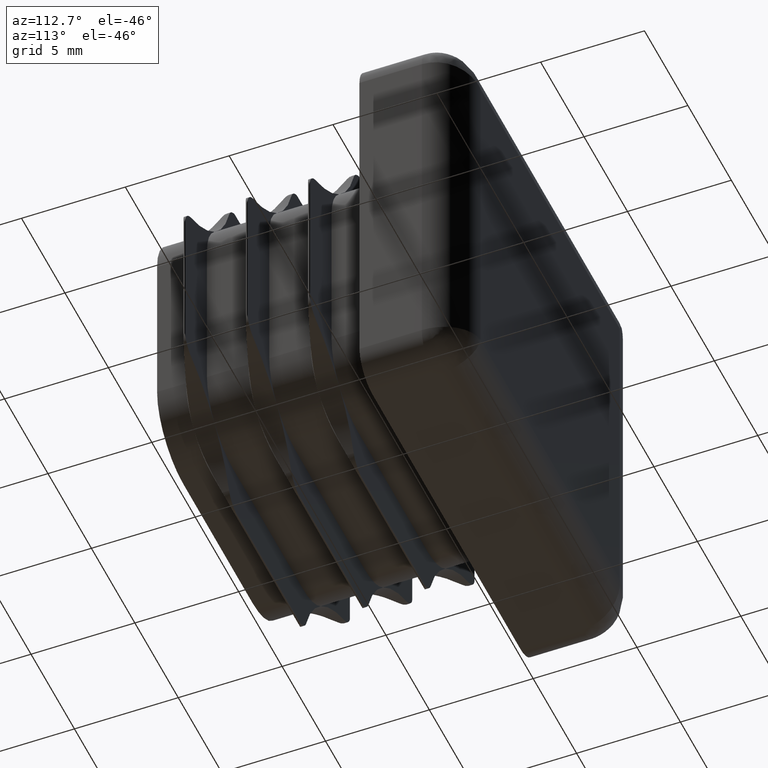
[diagram: clean part render]
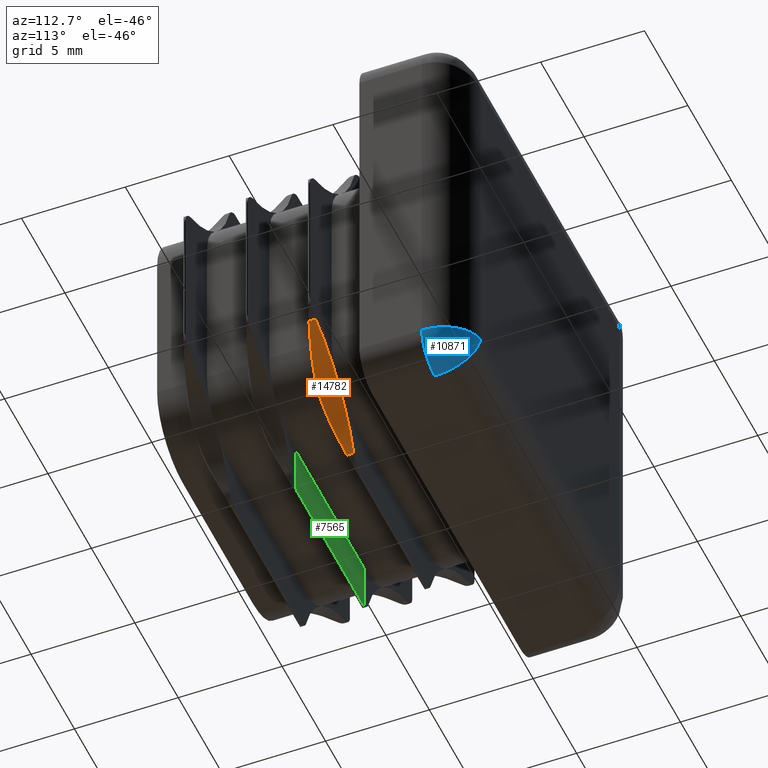
[diagram: same view with three faces highlighted in distinct colors, each labeled with its STEP entity id]
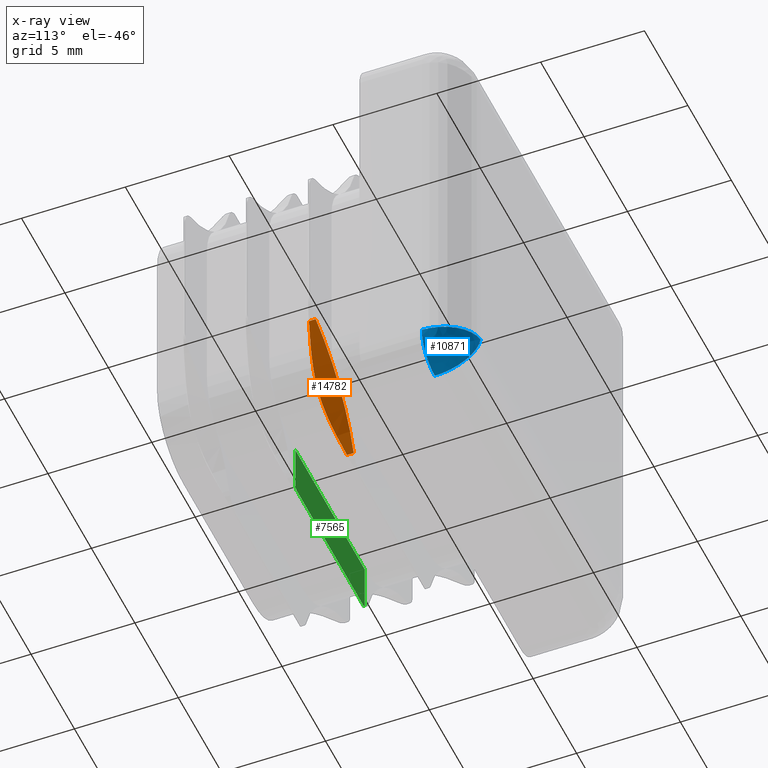
[diagram: x-ray of the same camera — body ghosted, the three highlighted faces saturated]
A machine part, auxiliary view with three faces highlighted in distinct colors.
The next image is the same camera in x-ray (body ghosted, the three faces saturated) — at least one of them is partly hidden behind the body in this view.
Their STEP definitions:

[orange] entity #14782 — the highlighted cylindrical surface (partial cylindrical patch) has radius 7 mm, axis along (-0, -1, -0).
#117 = DIRECTION ( 'NONE',  ( 0.000000000000000000, 0.000000000000000000, -1.000000000000000000 ) ) ;
#992 = EDGE_CURVE ( 'NONE', #14035, #10163, #3571, .T. ) ;
#1171 = CARTESIAN_POINT ( 'NONE',  ( 5.745531885353549306, -3.580002896200547013, -6.519760111651108581 ) ) ;
#1306 = CARTESIAN_POINT ( 'NONE',  ( 6.121320343559603749, -3.599999999999996980, -6.121320343559637500 ) ) ;
#1347 = DIRECTION ( 'NONE',  ( -0.000000000000000000, -1.000000000000000000, -0.000000000000000000 ) ) ;
#1427 = CARTESIAN_POINT ( 'NONE',  ( 7.169459828230924536, -3.452797768405219347, -5.253168636700123351 ) ) ;
#1678 = LINE ( 'NONE', #2845, #2201 ) ;
#1779 = CARTESIAN_POINT ( 'NONE',  ( 6.121320343559603749, -3.599999999999996980, -6.121320343559637500 ) ) ;
#1829 = CARTESIAN_POINT ( 'NONE',  ( 11.07106781186539735, 8.491681050490834437, -11.07106781186550926 ) ) ;
#2096 = DIRECTION ( 'NONE',  ( -0.000000000000000000, -1.000000000000000000, -0.000000000000000000 ) ) ;
#2201 = VECTOR ( 'NONE', #1347, 1000.000000000000000 ) ;
#2220 = AXIS2_PLACEMENT_3D ( 'NONE', #8789, #2096, #11836 ) ;
#2465 = EDGE_LOOP ( 'NONE', ( #17343, #15799, #13583, #7541, #10443, #9851 ) ) ;
#2735 = CARTESIAN_POINT ( 'NONE',  ( 5.404659111604990684, -3.505177043886538613, -6.951899555018928645 ) ) ;
#2845 = CARTESIAN_POINT ( 'NONE',  ( 8.821383476483250163, 8.491681050490834437, -4.442423878817345795 ) ) ;
#3113 = LINE ( 'NONE', #16249, #14548 ) ;
#3571 = B_SPLINE_CURVE_WITH_KNOTS ( 'NONE', 3,
 ( #6939, #11837, #5388, #16756, #2735, #1171, #5875, #1306 ),
 .UNSPECIFIED., .F., .F.,
 ( 4, 2, 2, 4 ),
 ( 2.193296499207361327E-07, 0.001634971459249367305, 0.002452347524049092002, 0.003269723588848817350 ),
 .UNSPECIFIED. ) ;
#3769 = CARTESIAN_POINT ( 'NONE',  ( 4.442423878817267635, -2.925917737636757998, -8.821383476483271480 ) ) ;
#4046 = VERTEX_POINT ( 'NONE', #18072 ) ;
#5193 = CARTESIAN_POINT ( 'NONE',  ( 11.07106781186539735, -2.600000000000000089, -11.07106781186550926 ) ) ;
#5388 = CARTESIAN_POINT ( 'NONE',  ( 4.832470983947253274, -3.263234164846329222, -7.852042368346087819 ) ) ;
#5875 = CARTESIAN_POINT ( 'NONE',  ( 5.927656959038019480, -3.599999999999996980, -6.314983728081218217 ) ) ;
#6010 = FACE_OUTER_BOUND ( 'NONE', #2465, .T. ) ;
#6344 = CARTESIAN_POINT ( 'NONE',  ( 6.121320343559603749, -3.599999999999996980, -6.121320343559637500 ) ) ;
#6939 = CARTESIAN_POINT ( 'NONE',  ( 4.442423878817267635, -2.925917737636757998, -8.821383476483271480 ) ) ;
#7541 = ORIENTED_EDGE ( 'NONE', *, *, #14510, .T. ) ;
#7915 = CARTESIAN_POINT ( 'NONE',  ( 6.519408464712602935, -3.579993506682874749, -5.745905243733256285 ) ) ;
#8426 = DIRECTION ( 'NONE',  ( -0.000000000000000000, -1.000000000000000000, -0.000000000000000000 ) ) ;
#8789 = CARTESIAN_POINT ( 'NONE',  ( 11.07106781186539735, -2.600000000000000089, -11.07106781186550926 ) ) ;
#9161 = VERTEX_POINT ( 'NONE', #15903 ) ;
#9640 = CARTESIAN_POINT ( 'NONE',  ( 8.821383476483250163, -2.600000000000000089, -4.442423878817345795 ) ) ;
#9740 = B_SPLINE_CURVE_WITH_KNOTS ( 'NONE', 3,
 ( #6344, #16094, #7915, #17719, #1427, #19486, #17791, #19283 ),
 .UNSPECIFIED., .F., .F.,
 ( 4, 2, 2, 4 ),
 ( 0.003269723588848817350, 0.004083633120292207326, 0.004897542651735597302, 0.006525361714622372050 ),
 .UNSPECIFIED. ) ;
#9851 = ORIENTED_EDGE ( 'NONE', *, *, #992, .F. ) ;
#10163 = VERTEX_POINT ( 'NONE', #1779 ) ;
#10443 = ORIENTED_EDGE ( 'NONE', *, *, #13036, .F. ) ;
#11711 = VERTEX_POINT ( 'NONE', #15483 ) ;
#11836 = DIRECTION ( 'NONE',  ( 0.000000000000000000, 0.000000000000000000, -1.000000000000000000 ) ) ;
#11837 = CARTESIAN_POINT ( 'NONE',  ( 4.611062613353775319, -3.101389552967593222, -8.324493265273966713 ) ) ;
#12077 = CIRCLE ( 'NONE', #14687, 6.999999999999999112 ) ;
#13036 = EDGE_CURVE ( 'NONE', #10163, #11711, #9740, .T. ) ;
#13583 = ORIENTED_EDGE ( 'NONE', *, *, #16344, .F. ) ;
#13601 = CYLINDRICAL_SURFACE ( 'NONE', #18384, 6.999999999999999112 ) ;
#14035 = VERTEX_POINT ( 'NONE', #3769 ) ;
#14510 = EDGE_CURVE ( 'NONE', #18895, #11711, #1678, .T. ) ;
#14548 = VECTOR ( 'NONE', #8426, 1000.000000000000000 ) ;
#14687 = AXIS2_PLACEMENT_3D ( 'NONE', #5193, #16558, #117 ) ;
#14782 = ADVANCED_FACE ( 'NONE', ( #6010 ), #13601, .F. ) ;
#15483 = CARTESIAN_POINT ( 'NONE',  ( 8.821383476483250163, -2.925917737636763327, -4.442423878817345795 ) ) ;
#15799 = ORIENTED_EDGE ( 'NONE', *, *, #20694, .F. ) ;
#15903 = CARTESIAN_POINT ( 'NONE',  ( 6.121320343559603749, -2.600000000000000089, -6.121320343559636612 ) ) ;
#16094 = CARTESIAN_POINT ( 'NONE',  ( 6.314162391842883082, -3.599999999999996536, -5.928478295276363497 ) ) ;
#16249 = CARTESIAN_POINT ( 'NONE',  ( 4.442423878817267635, 8.491681050490834437, -8.821383476483271480 ) ) ;
#16344 = EDGE_CURVE ( 'NONE', #18895, #9161, #12077, .T. ) ;
#16488 = DIRECTION ( 'NONE',  ( -0.000000000000000000, -1.000000000000000000, -0.000000000000000000 ) ) ;
#16558 = DIRECTION ( 'NONE',  ( -0.000000000000000000, -1.000000000000000000, -0.000000000000000000 ) ) ;
#16756 = CARTESIAN_POINT ( 'NONE',  ( 5.250404806876889374, -3.451760730813376643, -7.173576826732620759 ) ) ;
#17343 = ORIENTED_EDGE ( 'NONE', *, *, #18081, .F. ) ;
#17719 = CARTESIAN_POINT ( 'NONE',  ( 6.949236706462075475, -3.505707908590916411, -5.406664266205122971 ) ) ;
#17791 = CARTESIAN_POINT ( 'NONE',  ( 8.325792497765508671, -3.100930741989458728, -4.610621669019863589 ) ) ;
#18072 = CARTESIAN_POINT ( 'NONE',  ( 4.442423878817267635, -2.600000000000000089, -8.821383476483271480 ) ) ;
#18081 = EDGE_CURVE ( 'NONE', #4046, #14035, #3113, .T. ) ;
#18384 = AXIS2_PLACEMENT_3D ( 'NONE', #1829, #16488, #20240 ) ;
#18895 = VERTEX_POINT ( 'NONE', #9640 ) ;
#19283 = CARTESIAN_POINT ( 'NONE',  ( 8.821383476483250163, -2.925917737636763327, -4.442423878817345795 ) ) ;
#19486 = CARTESIAN_POINT ( 'NONE',  ( 7.847343410461620650, -3.264750765852229897, -4.834916461457533288 ) ) ;
#20240 = DIRECTION ( 'NONE',  ( 0.000000000000000000, 0.000000000000000000, -1.000000000000000000 ) ) ;
#20361 = CIRCLE ( 'NONE', #2220, 6.999999999999999112 ) ;
#20694 = EDGE_CURVE ( 'NONE', #9161, #4046, #20361, .T. ) ;

[blue] entity #10871 — the highlighted face is a freeform B-spline surface patch.
#311 =( BOUNDED_CURVE ( )  B_SPLINE_CURVE ( 3, ( #10026, #9806, #1770, #1915 ),
 .UNSPECIFIED., .F., .F. ) 
 B_SPLINE_CURVE_WITH_KNOTS ( ( 4, 4 ),
 ( 0.000000000000000000, 1.570796326794897446 ),
 .UNSPECIFIED. ) 
 CURVE ( )  GEOMETRIC_REPRESENTATION_ITEM ( )  RATIONAL_B_SPLINE_CURVE ( ( 1.000000000000000000, 0.8047378541243648264, 0.8047378541243648264, 1.000000000000000000 ) ) 
 REPRESENTATION_ITEM ( '' )  );
#449 = CARTESIAN_POINT ( 'NONE',  ( 8.500000000000017764, 3.000000000000000000, -10.00000000000000000 ) ) ;
#456 = CIRCLE ( 'NONE', #19808, 1.499999999999999556 ) ;
#796 = CARTESIAN_POINT ( 'NONE',  ( 9.475127912448758849, 4.456070975774515830, -9.475127912448808587 ) ) ;
#873 = CARTESIAN_POINT ( 'NONE',  ( 8.499999999934479078, 3.130901116873727297, -10.00000000000000000 ) ) ;
#1022 = CARTESIAN_POINT ( 'NONE',  ( 9.267225952656692911, 4.642399879337945734, -9.267225952656614751 ) ) ;
#1318 = CARTESIAN_POINT ( 'NONE',  ( 8.500000000000014211, 3.000000000000000000, -10.00000000000000000 ) ) ;
#1770 = CARTESIAN_POINT ( 'NONE',  ( 9.171572875253826140, 5.000000000000001776, -8.292893218813452094 ) ) ;
#1915 = CARTESIAN_POINT ( 'NONE',  ( 8.000000000000015987, 5.000000000000000000, -8.000000000000001776 ) ) ;
#2440 = CARTESIAN_POINT ( 'NONE',  ( 8.868498082558987861, 4.871239223148100095, -8.868498082558970097 ) ) ;
#2509 = CARTESIAN_POINT ( 'NONE',  ( 8.496776951960159252, 3.261796233497789466, -9.987107807840512663 ) ) ;
#2655 = CARTESIAN_POINT ( 'NONE',  ( 9.967381048192319071, 3.454858333943229720, -9.967381048192274662 ) ) ;
#2722 = CARTESIAN_POINT ( 'NONE',  ( 8.065461631044817281, 5.000000000000000000, -8.261846524179192741 ) ) ;
#3145 = CARTESIAN_POINT ( 'NONE',  ( 8.500000000000014211, 3.000000000000000000, -10.00000000000000000 ) ) ;
#4107 = CARTESIAN_POINT ( 'NONE',  ( 10.00000000000001776, 3.000000000000000000, -8.500000000000000000 ) ) ;
#4318 = CARTESIAN_POINT ( 'NONE',  ( 9.007237873748264789, 4.747572812742424375, -8.251809468437061312 ) ) ;
#4388 = CARTESIAN_POINT ( 'NONE',  ( 8.261846524179208728, 4.999999999999999112, -8.065461631044797741 ) ) ;
#4777 =( BOUNDED_SURFACE ( )  B_SPLINE_SURFACE ( 3, 2, ( 
 ( #449, #7436, #4107 ),
 ( #873, #10769, #6008 ),
 ( #2509, #2655, #12252 ),
 ( #20565, #9202, #8920 ),
 ( #17103, #20286, #18727 ),
 ( #9132, #18796, #10558 ),
 ( #12467, #796, #17382 ),
 ( #12183, #1022, #20499 ),
 ( #13932, #5937, #17307 ),
 ( #8999, #2440, #13999 ),
 ( #15607, #12399, #4318 ),
 ( #15461, #9065, #13857 ),
 ( #2722, #10838, #4388 ),
 ( #18866, #5732, #7575 ) ),
 .UNSPECIFIED., .F., .F., .F. ) 
 B_SPLINE_SURFACE_WITH_KNOTS ( ( 4, 2, 2, 2, 2, 2, 4 ),
 ( 3, 3 ),
 ( 6.283185307179586232, 6.479534848028948524, 6.675884388878310816, 6.872233929727672219, 7.068583470577034511, 7.461282552275758206, 7.853981633974482790 ),
 ( 0.000000000000000000, 1.000000000000000000 ),
 .UNSPECIFIED. ) 
 GEOMETRIC_REPRESENTATION_ITEM ( )  RATIONAL_B_SPLINE_SURFACE ( (
 ( 1.000000000000000000, 0.7071067811865475727, 1.000000000000000000),
 ( 1.000000000000000000, 0.7070717008705392770, 1.000000000000000000),
 ( 1.000000000000000000, 0.7117460391535136432, 1.000000000000000000),
 ( 1.000000000000000000, 0.7291288573898028202, 1.000000000000000000),
 ( 1.000000000000000000, 0.7418334672881716774, 1.000000000000000000),
 ( 1.000000000000000000, 0.7723967724090317066, 1.000000000000000000),
 ( 1.000000000000000000, 0.7902180514827583657, 1.000000000000000000),
 ( 1.000000000000000000, 0.8275942267605824743, 1.000000000000000000),
 ( 1.000000000000000000, 0.8471316911967918806, 1.000000000000000000),
 ( 1.000000000000000000, 0.9038128289597302523, 1.000000000000000000),
 ( 1.000000000000000000, 0.9386556746367710202, 1.000000000000000000),
 ( 1.000000000000000000, 0.9867291651255415408, 1.000000000000000000),
 ( 1.000000000000000000, 1.000158598892028960, 1.000000000000000000),
 ( 1.000000000000000000, 1.000000000000000000, 1.000000000000000000) ) ) 
 REPRESENTATION_ITEM ( '' )  SURFACE ( )  );
#5297 = EDGE_CURVE ( 'NONE', #13898, #14724, #311, .T. ) ;
#5587 = FACE_OUTER_BOUND ( 'NONE', #20187, .T. ) ;
#5732 = CARTESIAN_POINT ( 'NONE',  ( 8.000000000000019540, 5.000000000000000000, -8.000000000000000000 ) ) ;
#5937 = CARTESIAN_POINT ( 'NONE',  ( 9.163169948761591854, 4.712569180173970196, -9.163169948761574091 ) ) ;
#6008 = CARTESIAN_POINT ( 'NONE',  ( 10.00000000000001776, 3.130901116873741064, -8.499999999934573225 ) ) ;
#6611 = ORIENTED_EDGE ( 'NONE', *, *, #9123, .T. ) ;
#7436 = CARTESIAN_POINT ( 'NONE',  ( 10.00000000000001776, 2.999999999999999556, -10.00000000000000178 ) ) ;
#7575 = CARTESIAN_POINT ( 'NONE',  ( 8.000000000000021316, 5.000000000000000000, -8.000000000000000000 ) ) ;
#7734 = CARTESIAN_POINT ( 'NONE',  ( 8.500000000000017764, 4.171572875253810153, -10.00000000000000000 ) ) ;
#7863 = CARTESIAN_POINT ( 'NONE',  ( 8.292893218813469858, 5.000000000000000000, -9.171572875253810153 ) ) ;
#7887 =( BOUNDED_CURVE ( )  B_SPLINE_CURVE ( 3, ( #1318, #7734, #7863, #9353 ),
 .UNSPECIFIED., .F., .T. ) 
 B_SPLINE_CURVE_WITH_KNOTS ( ( 4, 4 ),
 ( 0.000000000000000000, 1.570796326794896558 ),
 .UNSPECIFIED. ) 
 CURVE ( )  GEOMETRIC_REPRESENTATION_ITEM ( )  RATIONAL_B_SPLINE_CURVE ( ( 1.000000000000000000, 0.8047378541243649375, 0.8047378541243649375, 1.000000000000000000 ) ) 
 REPRESENTATION_ITEM ( '' )  );
#8072 = ORIENTED_EDGE ( 'NONE', *, *, #11429, .F. ) ;
#8441 = ORIENTED_EDGE ( 'NONE', *, *, #5297, .F. ) ;
#8920 = CARTESIAN_POINT ( 'NONE',  ( 9.936033313772423270, 3.518565054566740180, -8.484008328443115587 ) ) ;
#8999 = CARTESIAN_POINT ( 'NONE',  ( 8.307273380556349451, 4.599333602520793818, -9.229093522225397805 ) ) ;
#9065 = CARTESIAN_POINT ( 'NONE',  ( 8.331464037326457017, 4.987936888157777027, -8.331464037326437477 ) ) ;
#9123 = EDGE_CURVE ( 'NONE', #10033, #14724, #7887, .T. ) ;
#9132 = CARTESIAN_POINT ( 'NONE',  ( 8.449416487498760731, 3.886302342411108945, -9.797665949995064238 ) ) ;
#9202 = CARTESIAN_POINT ( 'NONE',  ( 9.849303782782367733, 3.862933231318100180, -9.849303782782374839 ) ) ;
#9353 = CARTESIAN_POINT ( 'NONE',  ( 8.000000000000015987, 5.000000000000000000, -8.000000000000001776 ) ) ;
#9372 = CARTESIAN_POINT ( 'NONE',  ( 8.500000000000015987, 3.000000000000000000, -8.500000000000000000 ) ) ;
#9806 = CARTESIAN_POINT ( 'NONE',  ( 10.00000000000001421, 4.171572875253810153, -8.500000000000000000 ) ) ;
#10026 = CARTESIAN_POINT ( 'NONE',  ( 10.00000000000001599, 3.000000000000000000, -8.500000000000000000 ) ) ;
#10033 = VERTEX_POINT ( 'NONE', #3145 ) ;
#10558 = CARTESIAN_POINT ( 'NONE',  ( 9.797665949995067791, 3.886302342411143584, -8.449416487498773165 ) ) ;
#10769 = CARTESIAN_POINT ( 'NONE',  ( 9.999999991084669304, 3.229445146648374898, -9.999999991084878914 ) ) ;
#10838 = CARTESIAN_POINT ( 'NONE',  ( 8.163602867483380265, 4.999999997674066776, -8.163602867483039205 ) ) ;
#10871 = ADVANCED_FACE ( 'NONE', ( #5587 ), #4777, .T. ) ;
#11429 = EDGE_CURVE ( 'NONE', #10033, #13898, #456, .T. ) ;
#12183 = CARTESIAN_POINT ( 'NONE',  ( 8.397553822052683969, 4.219979528330787488, -9.590215288210689693 ) ) ;
#12252 = CARTESIAN_POINT ( 'NONE',  ( 9.987107807840533980, 3.261796233497769482, -8.496776951960114843 ) ) ;
#12399 = CARTESIAN_POINT ( 'NONE',  ( 8.679281854046230649, 4.924992851440422648, -8.679281854046212885 ) ) ;
#12467 = CARTESIAN_POINT ( 'NONE',  ( 8.433915790249894684, 4.002301403747621222, -9.735663160999495247 ) ) ;
#13195 = CARTESIAN_POINT ( 'NONE',  ( 8.000000000000015987, 5.000000000000000000, -8.000000000000001776 ) ) ;
#13857 = CARTESIAN_POINT ( 'NONE',  ( 8.523495855712138081, 4.947945317302719026, -8.130873963928030079 ) ) ;
#13898 = VERTEX_POINT ( 'NONE', #17748 ) ;
#13932 = CARTESIAN_POINT ( 'NONE',  ( 8.376693395611763293, 4.321653542299241479, -9.506773582446948367 ) ) ;
#13999 = CARTESIAN_POINT ( 'NONE',  ( 9.229093522225381818, 4.599333602520827569, -8.307273380556331688 ) ) ;
#14257 = DIRECTION ( 'NONE',  ( 0.000000000000000000, -1.000000000000000000, -0.000000000000000000 ) ) ;
#14397 = DIRECTION ( 'NONE',  ( 0.000000000000000000, 0.000000000000000000, -1.000000000000000000 ) ) ;
#14724 = VERTEX_POINT ( 'NONE', #13195 ) ;
#15461 = CARTESIAN_POINT ( 'NONE',  ( 8.130873963928047843, 4.947945317302719914, -8.523495855712116764 ) ) ;
#15607 = CARTESIAN_POINT ( 'NONE',  ( 8.251809468437077300, 4.747572812742426152, -9.007237873748243473 ) ) ;
#17103 = CARTESIAN_POINT ( 'NONE',  ( 8.474463045012562645, 3.644431387049245075, -9.897852180050087156 ) ) ;
#17307 = CARTESIAN_POINT ( 'NONE',  ( 9.506773582446983895, 4.321653542299222828, -8.376693395611745530 ) ) ;
#17382 = CARTESIAN_POINT ( 'NONE',  ( 9.735663160999500576, 4.002301403747635433, -8.433915790249880473 ) ) ;
#17748 = CARTESIAN_POINT ( 'NONE',  ( 10.00000000000001599, 3.000000000000000000, -8.500000000000000000 ) ) ;
#18727 = CARTESIAN_POINT ( 'NONE',  ( 9.897852180050117354, 3.644431387049205995, -8.474463045012514684 ) ) ;
#18796 = CARTESIAN_POINT ( 'NONE',  ( 9.578506115850927927, 4.337851778722862761, -9.578506115850936808 ) ) ;
#18866 = CARTESIAN_POINT ( 'NONE',  ( 8.000000000000017764, 5.000000000000000000, -7.999999999999998224 ) ) ;
#19808 = AXIS2_PLACEMENT_3D ( 'NONE', #9372, #14257, #14397 ) ;
#20187 = EDGE_LOOP ( 'NONE', ( #8072, #6611, #8441 ) ) ;
#20286 = CARTESIAN_POINT ( 'NONE',  ( 9.766763865964938063, 4.041650783308535999, -9.766763865964890101 ) ) ;
#20499 = CARTESIAN_POINT ( 'NONE',  ( 9.590215288210712785, 4.219979528330772389, -8.397553822052667982 ) ) ;
#20565 = CARTESIAN_POINT ( 'NONE',  ( 8.484008328443104929, 3.518565054566721528, -9.936033313772409059 ) ) ;

[green] entity #7565 — the highlighted planar face has unit normal (0, -1, 0).
#231 = VERTEX_POINT ( 'NONE', #13986 ) ;
#457 = CARTESIAN_POINT ( 'NONE',  ( 3.495474745524675075, -5.600000000000000533, -8.500000000000097700 ) ) ;
#914 = CARTESIAN_POINT ( 'NONE',  ( 3.999999999999982681, -5.599999999999999645, -7.000000000000010658 ) ) ;
#1622 = ORIENTED_EDGE ( 'NONE', *, *, #19876, .T. ) ;
#1747 = VERTEX_POINT ( 'NONE', #13670 ) ;
#2109 = DIRECTION ( 'NONE',  ( 0.000000000000000000, -1.000000000000000000, 0.000000000000000000 ) ) ;
#2245 = AXIS2_PLACEMENT_3D ( 'NONE', #15411, #2109, #15274 ) ;
#2248 = DIRECTION ( 'NONE',  ( -8.673617379884043361E-16, 0.000000000000000000, -1.000000000000000000 ) ) ;
#2446 = DIRECTION ( 'NONE',  ( 0.000000000000000000, -1.000000000000000000, -0.000000000000000000 ) ) ;
#2634 = CARTESIAN_POINT ( 'NONE',  ( 3.807724645444750422, -5.600000000000000533, -9.450000000000045475 ) ) ;
#2783 = EDGE_CURVE ( 'NONE', #231, #11534, #4242, .T. ) ;
#2817 = ORIENTED_EDGE ( 'NONE', *, *, #20665, .F. ) ;
#3983 = DIRECTION ( 'NONE',  ( -0.000000000000000000, 1.000000000000000000, 0.000000000000000000 ) ) ;
#4242 = LINE ( 'NONE', #914, #13354 ) ;
#5447 = AXIS2_PLACEMENT_3D ( 'NONE', #5736, #2446, #15397 ) ;
#5736 = CARTESIAN_POINT ( 'NONE',  ( -3.495474745524675075, -5.600000000000000533, -8.500000000000097700 ) ) ;
#5832 = VERTEX_POINT ( 'NONE', #15870 ) ;
#5885 = LINE ( 'NONE', #15435, #7663 ) ;
#7565 = ADVANCED_FACE ( 'NONE', ( #19839 ), #10221, .F. ) ;
#7663 = VECTOR ( 'NONE', #10319, 1000.000000000000000 ) ;
#8433 = VERTEX_POINT ( 'NONE', #18197 ) ;
#9017 = AXIS2_PLACEMENT_3D ( 'NONE', #457, #3983, #2248 ) ;
#9831 = ORIENTED_EDGE ( 'NONE', *, *, #2783, .F. ) ;
#10110 = ORIENTED_EDGE ( 'NONE', *, *, #20010, .T. ) ;
#10202 = VECTOR ( 'NONE', #11665, 1000.000000000000000 ) ;
#10221 = PLANE ( 'NONE',  #2245 ) ;
#10255 = CARTESIAN_POINT ( 'NONE',  ( -3.999999999999989786, -5.599999999999999645, -7.000000000000015987 ) ) ;
#10319 = DIRECTION ( 'NONE',  ( -1.000000000000000000, 0.000000000000000000, -8.673617379884065054E-16 ) ) ;
#11534 = VERTEX_POINT ( 'NONE', #16412 ) ;
#11665 = DIRECTION ( 'NONE',  ( -1.084202172485507984E-15, -0.000000000000000000, 1.000000000000000000 ) ) ;
#12108 = EDGE_CURVE ( 'NONE', #5832, #8433, #14673, .T. ) ;
#12217 = LINE ( 'NONE', #16609, #17565 ) ;
#13154 = EDGE_LOOP ( 'NONE', ( #19720, #1622, #2817, #9831, #19126, #10110 ) ) ;
#13354 = VECTOR ( 'NONE', #16132, 1000.000000000000000 ) ;
#13381 = VERTEX_POINT ( 'NONE', #2634 ) ;
#13670 = CARTESIAN_POINT ( 'NONE',  ( -3.999999999999996447, -5.599999999999999645, -6.999999999999985789 ) ) ;
#13986 = CARTESIAN_POINT ( 'NONE',  ( 3.999999999999982681, -5.600000000000000533, -9.363396935132845655 ) ) ;
#14508 = LINE ( 'NONE', #10255, #10202 ) ;
#14673 = CIRCLE ( 'NONE', #5447, 0.9999999999999991118 ) ;
#15274 = DIRECTION ( 'NONE',  ( 0.000000000000000000, 0.000000000000000000, -1.000000000000000000 ) ) ;
#15397 = DIRECTION ( 'NONE',  ( 0.000000000000000000, 0.000000000000000000, -1.000000000000000000 ) ) ;
#15411 = CARTESIAN_POINT ( 'NONE',  ( 3.999999999999982681, -5.599999999999999645, -7.000000000000008882 ) ) ;
#15435 = CARTESIAN_POINT ( 'NONE',  ( 3.999999999999985345, -5.599999999999999645, -9.450000000000045475 ) ) ;
#15870 = CARTESIAN_POINT ( 'NONE',  ( -3.999999999999987121, -5.600000000000000533, -9.363396935132843879 ) ) ;
#16132 = DIRECTION ( 'NONE',  ( -2.168404344971014538E-16, -0.000000000000000000, 1.000000000000000000 ) ) ;
#16412 = CARTESIAN_POINT ( 'NONE',  ( 3.999999999999982681, -5.599999999999999645, -6.999999999999985789 ) ) ;
#16609 = CARTESIAN_POINT ( 'NONE',  ( 3.999999999999982681, -5.599999999999999645, -7.000000000000008882 ) ) ;
#16914 = EDGE_CURVE ( 'NONE', #231, #13381, #19664, .T. ) ;
#17565 = VECTOR ( 'NONE', #17885, 1000.000000000000000 ) ;
#17885 = DIRECTION ( 'NONE',  ( -1.000000000000000000, 0.000000000000000000, -8.673617379884065054E-16 ) ) ;
#18197 = CARTESIAN_POINT ( 'NONE',  ( -3.807724645444729994, -5.600000000000000533, -9.450000000000052580 ) ) ;
#19126 = ORIENTED_EDGE ( 'NONE', *, *, #16914, .T. ) ;
#19664 = CIRCLE ( 'NONE', #9017, 0.9999999999999991118 ) ;
#19720 = ORIENTED_EDGE ( 'NONE', *, *, #12108, .F. ) ;
#19839 = FACE_OUTER_BOUND ( 'NONE', #13154, .T. ) ;
#19876 = EDGE_CURVE ( 'NONE', #5832, #1747, #14508, .T. ) ;
#20010 = EDGE_CURVE ( 'NONE', #13381, #8433, #5885, .T. ) ;
#20665 = EDGE_CURVE ( 'NONE', #11534, #1747, #12217, .T. ) ;